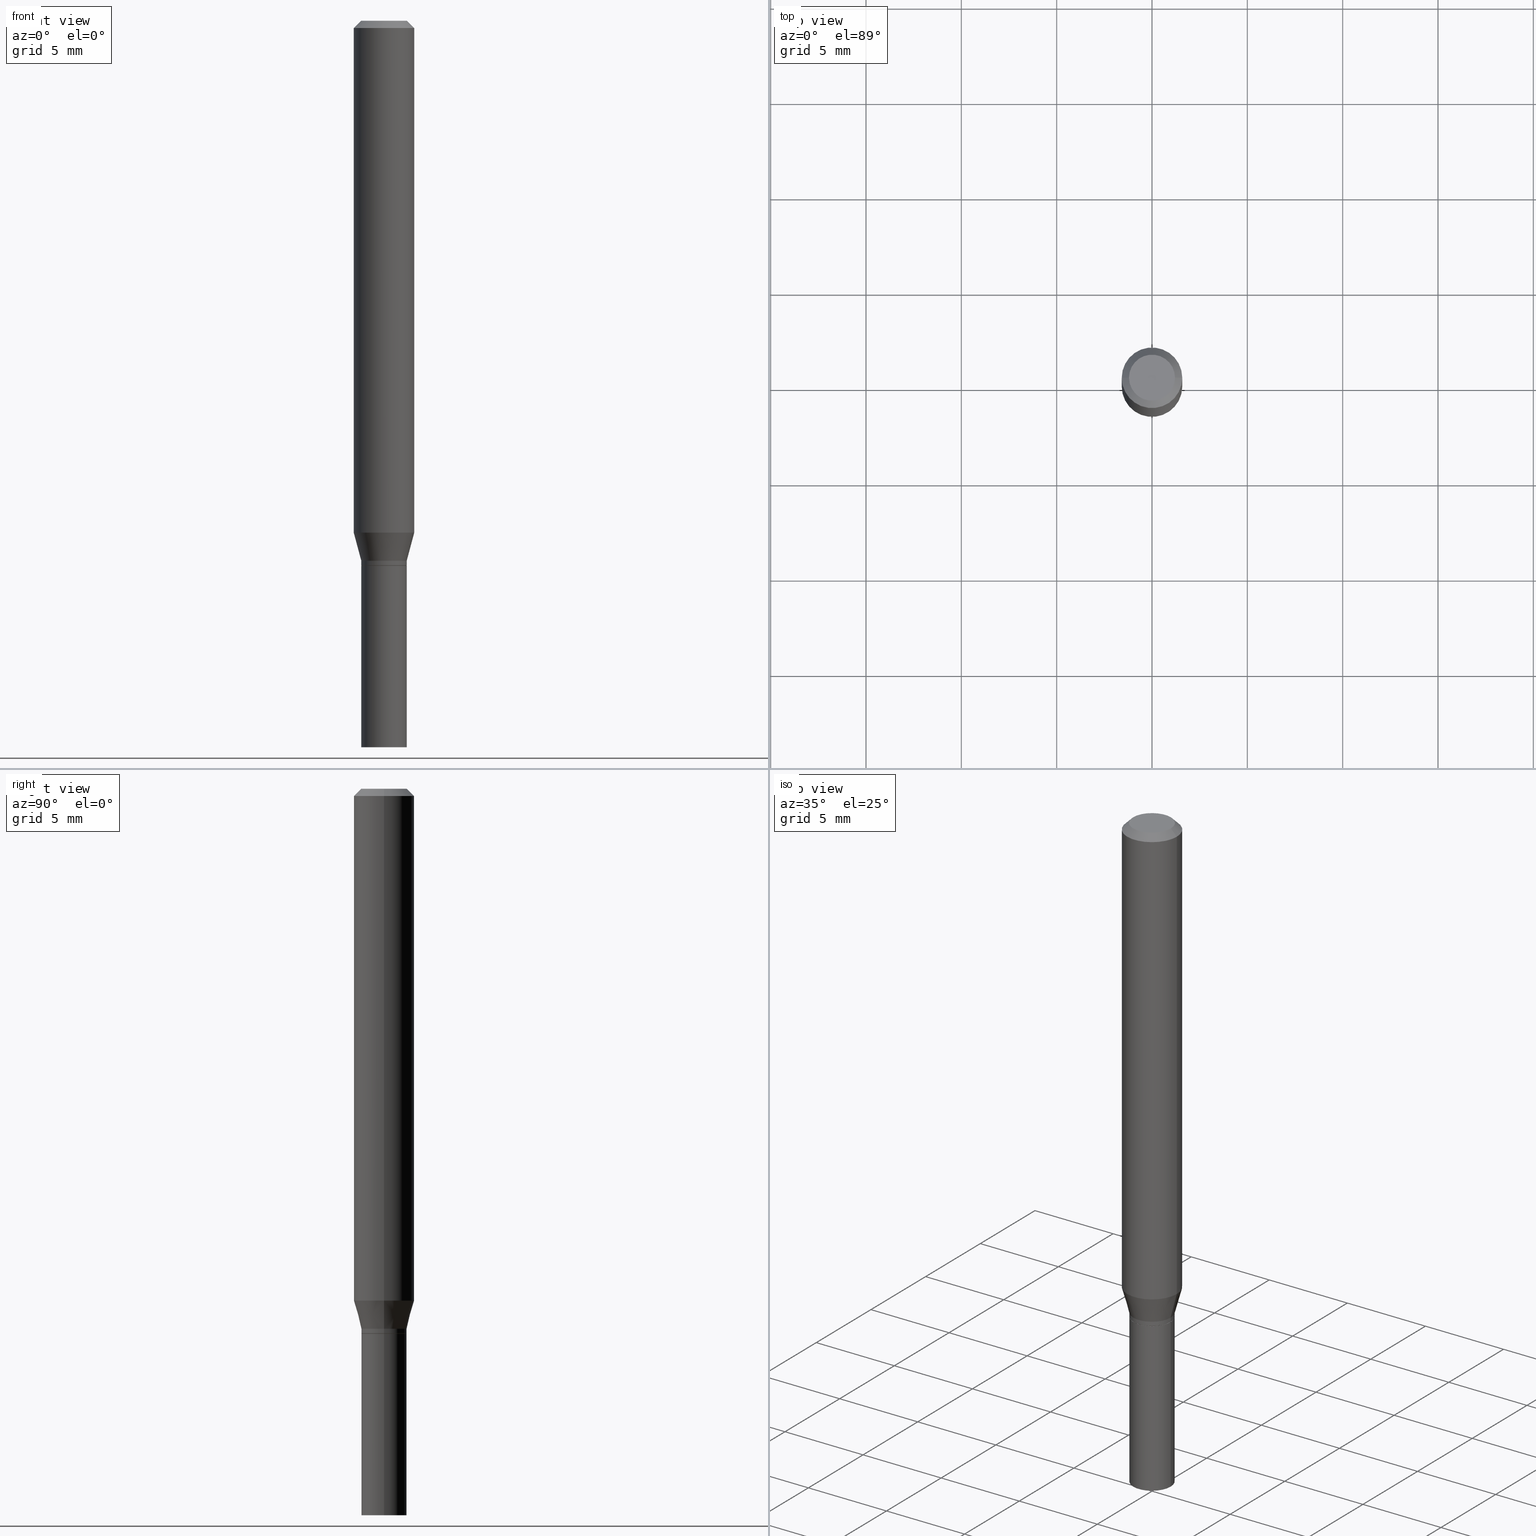
[diagram: canonical four-view strip — front | top / right | iso, engineering-drawing reading convention]
A machine part, canonical four-view strip (front | top / right | iso — engineering-drawing reading convention). The complete STEP part file that produces these views, byte-faithful:
ISO-10303-21;
HEADER;
FILE_DESCRIPTION (( 'STEP AP203' ),
    '1' );
FILE_NAME ('35275.STEP',
    '2024-03-13T16:38:30',
    ( '' ),
    ( '' ),
    'SwSTEP 2.0',
    'SolidWorks 2023',
    '' );
FILE_SCHEMA (( 'CONFIG_CONTROL_DESIGN' ));
ENDSEC;

DATA;
#1 = EDGE_CURVE ( 'NONE', #136, #119, #212, .T. ) ;
#2 = DIRECTION ( 'NONE',  ( 1.000000000000000000, 0.000000000000000000, 0.000000000000000000 ) ) ;
#3 = PRODUCT_RELATED_PRODUCT_CATEGORY ( 'detail', '', ( #90 ) ) ;
#4 = VECTOR ( 'NONE', #116, 39.37007874015748143 ) ;
#5 = APPROVAL_PERSON_ORGANIZATION ( #46, #442, #328 ) ;
#6 = ADVANCED_BREP_SHAPE_REPRESENTATION ( '35275', ( #162, #155, #414 ), #150 ) ;
#7 = COORDINATED_UNIVERSAL_TIME_OFFSET ( 5, 0, .BEHIND. ) ;
#8 = CYLINDRICAL_SURFACE ( 'NONE', #61, 0.06250000000000000000 ) ;
#9 = DATE_AND_TIME ( #71, #70 ) ;
#10 = VERTEX_POINT ( 'NONE', #103 ) ;
#11 = ORIENTED_EDGE ( 'NONE', *, *, #202, .F. ) ;
#12 = CARTESIAN_POINT ( 'NONE',  ( 3.668203209277705088E-31, -5.237222008264718399E-17, -0.01499999999999999944 ) ) ;
#13 = APPROVAL_ROLE ( '' ) ;
#14 = EDGE_LOOP ( 'NONE', ( #169, #352, #58, #139 ) ) ;
#15 = CIRCLE ( 'NONE', #327, 0.04749999999999999362 ) ;
#16 = DIRECTION ( 'NONE',  ( 1.000000000000000000, -6.982962677686267499E-15, 4.852736867747366768E-29 ) ) ;
#17 = CC_DESIGN_APPROVAL ( #316, ( #326 ) ) ;
#18 = ADVANCED_FACE ( 'NONE', ( #244 ), #445, .T. ) ;
#19 = LINE ( 'NONE', #298, #4 ) ;
#20 = APPROVAL_DATE_TIME ( #439, #65 ) ;
#21 = DIRECTION ( 'NONE',  ( -2.445468806185136597E-29, 3.491481338843145583E-15, 1.000000000000000000 ) ) ;
#22 = FACE_OUTER_BOUND ( 'NONE', #161, .T. ) ;
#23 = ADVANCED_FACE ( 'NONE', ( #182 ), #283, .T. ) ;
#24 = CIRCLE ( 'NONE', #319, 0.04639999999999999680 ) ;
#25 = DIRECTION ( 'NONE',  ( 1.000000000000000000, -6.982962677686266711E-15, 0.000000000000000000 ) ) ;
#26 = UNCERTAINTY_MEASURE_WITH_UNIT (LENGTH_MEASURE( 1.000000000000000082E-05 ), #141, 'distance_accuracy_value', 'NONE');
#27 = CARTESIAN_POINT ( 'NONE',  ( 2.751152406958279232E-29, -3.927916506198539224E-15, -1.125000000000000222 ) ) ;
#28 = DIRECTION ( 'NONE',  ( 2.438088387897960049E-29, -3.491481338843145188E-15, -1.000000000000000000 ) ) ;
#29 = DIRECTION ( 'NONE',  ( 1.000000000000000000, -6.982962677686265922E-15, 4.876176775795935232E-29 ) ) ;
#30 = VECTOR ( 'NONE', #278, 39.37007874015748143 ) ;
#31 = CARTESIAN_POINT ( 'NONE',  ( 0.04690000000000019154, -4.220502642393595055E-15, -1.115000000000000213 ) ) ;
#32 = LINE ( 'NONE', #67, #30 ) ;
#33 = CARTESIAN_POINT ( 'NONE',  ( 0.04689999999999999725, -3.275009495834859024E-16, 2.286926907848294038E-30 ) ) ;
#34 = DIRECTION ( 'NONE',  ( 1.000000000000000000, -6.982962677686265922E-15, 4.876176775795935793E-29 ) ) ;
#35 = VERTEX_POINT ( 'NONE', #253 ) ;
#36 = ORIENTED_EDGE ( 'NONE', *, *, #397, .F. ) ;
#37 = CIRCLE ( 'NONE', #51, 0.04639999999999999680 ) ;
#38 = AXIS2_PLACEMENT_3D ( 'NONE', #104, #72, #398 ) ;
#39 = FACE_OUTER_BOUND ( 'NONE', #380, .T. ) ;
#40 = DIRECTION ( 'NONE',  ( 0.7071067811865656694, -2.468850131082446387E-15, 0.7071067811865294761 ) ) ;
#41 = VERTEX_POINT ( 'NONE', #31 ) ;
#42 = MECHANICAL_CONTEXT ( 'NONE', #166, 'mechanical' ) ;
#43 = PERSON_AND_ORGANIZATION ( #421, #205 ) ;
#44 = AXIS2_PLACEMENT_3D ( 'NONE', #181, #252, #263 ) ;
#45 = CYLINDRICAL_SURFACE ( 'NONE', #272, 0.06250000000000000000 ) ;
#46 = PERSON_AND_ORGANIZATION ( #421, #205 ) ;
#47 = ORIENTED_EDGE ( 'NONE', *, *, #222, .F. ) ;
#48 = CARTESIAN_POINT ( 'NONE',  ( 0.000000000000000000, 0.000000000000000000, 0.000000000000000000 ) ) ;
#49 = DIRECTION ( 'NONE',  ( 0.2588190451025217942, 1.565188264969618812E-15, 0.9659258262890679791 ) ) ;
#50 = CC_DESIGN_PERSON_AND_ORGANIZATION_ASSIGNMENT ( #43, #290, ( #90 ) ) ;
#51 = AXIS2_PLACEMENT_3D ( 'NONE', #464, #286, #115 ) ;
#52 = DIRECTION ( 'NONE',  ( -2.445468806185136877E-29, 3.491481338843145188E-15, 1.000000000000000000 ) ) ;
#53 = LINE ( 'NONE', #302, #309 ) ;
#54 = SHAPE_DEFINITION_REPRESENTATION ( #152, #6 ) ;
#55 = ORIENTED_EDGE ( 'NONE', *, *, #112, .T. ) ;
#56 = VERTEX_POINT ( 'NONE', #454 ) ;
#57 = LINE ( 'NONE', #196, #62 ) ;
#58 = ORIENTED_EDGE ( 'NONE', *, *, #337, .T. ) ;
#59 = EDGE_LOOP ( 'NONE', ( #426, #465 ) ) ;
#60 = CARTESIAN_POINT ( 'NONE',  ( 0.06250000000000000000, -4.364351673553916694E-16, 3.047610484872459871E-30 ) ) ;
#61 = AXIS2_PLACEMENT_3D ( 'NONE', #291, #433, #189 ) ;
#62 = VECTOR ( 'NONE', #344, 39.37007874015748854 ) ;
#63 = DIRECTION ( 'NONE',  ( -2.438088387897960049E-29, 3.491481338843145188E-15, 1.000000000000000000 ) ) ;
#64 = ADVANCED_FACE ( 'NONE', ( #371 ), #401, .T. ) ;
#65 = APPROVAL ( #339, 'UNSPECIFIED' ) ;
#66 = CARTESIAN_POINT ( 'NONE',  ( -0.04749999999999999362, 3.578768372314206562E-16, -2.412092357106787927E-16 ) ) ;
#67 = CARTESIAN_POINT ( 'NONE',  ( -0.04689999999999999725, 3.332445430714869676E-16, -2.306980557329550952E-30 ) ) ;
#68 = VERTEX_POINT ( 'NONE', #248 ) ;
#69 = AXIS2_PLACEMENT_3D ( 'NONE', #275, #21, #228 ) ;
#70 = LOCAL_TIME ( 12, 38, 30.00000000000000000, #7 ) ;
#71 = CALENDAR_DATE ( 2024, 13, 3 ) ;
#72 = DIRECTION ( 'NONE',  ( 2.438088387897960049E-29, -3.491481338843145188E-15, -1.000000000000000000 ) ) ;
#73 = VERTEX_POINT ( 'NONE', #430 ) ;
#74 = ORIENTED_EDGE ( 'NONE', *, *, #204, .F. ) ;
#75 = CALENDAR_DATE ( 2024, 13, 3 ) ;
#76 = ORIENTED_EDGE ( 'NONE', *, *, #208, .F. ) ;
#77 = DIRECTION ( 'NONE',  ( -2.445468806185136597E-29, 3.491481338843145583E-15, 1.000000000000000000 ) ) ;
#78 = DIRECTION ( 'NONE',  ( 1.000000000000000000, -6.982962677686266711E-15, 0.000000000000000000 ) ) ;
#79 = ADVANCED_FACE ( 'NONE', ( #183 ), #8, .T. ) ;
#80 = DIRECTION ( 'NONE',  ( 1.000000000000000000, -6.982962677686269866E-15, 0.000000000000000000 ) ) ;
#81 = APPLICATION_PROTOCOL_DEFINITION ( 'international standard', 'config_control_design', 1994, #166 ) ;
#82 = ORIENTED_EDGE ( 'NONE', *, *, #208, .T. ) ;
#83 = CARTESIAN_POINT ( 'NONE',  ( 2.751152406958279232E-29, -3.927916506198539224E-15, -1.125000000000000222 ) ) ;
#84 = DIRECTION ( 'NONE',  ( -2.445468806185136877E-29, 3.491481338843145188E-15, 1.000000000000000000 ) ) ;
#85 = LINE ( 'NONE', #187, #149 ) ;
#86 = PERSON_AND_ORGANIZATION_ROLE ( 'classification_officer' ) ;
#87 = COORDINATED_UNIVERSAL_TIME_OFFSET ( 5, 0, .BEHIND. ) ;
#88 = CIRCLE ( 'NONE', #437, 0.06249999999999999306 ) ;
#89 = EDGE_CURVE ( 'NONE', #68, #41, #19, .T. ) ;
#90 = PRODUCT ( '35275', '35275', '', ( #42 ) ) ;
#91 = DIRECTION ( 'NONE',  ( 1.000000000000000000, -6.982962677686269866E-15, 0.000000000000000000 ) ) ;
#92 = EDGE_LOOP ( 'NONE', ( #436, #389, #111, #394 ) ) ;
#93 = DIRECTION ( 'NONE',  ( 1.000000000000000000, -6.982962677686266711E-15, 0.000000000000000000 ) ) ;
#94 = FACE_OUTER_BOUND ( 'NONE', #210, .T. ) ;
#95 = DIRECTION ( 'NONE',  ( -2.445468806185136597E-29, 3.491481338843145583E-15, 1.000000000000000000 ) ) ;
#96 = DIRECTION ( 'NONE',  ( -0.2588190451025217942, 5.211531920934552619E-15, 0.9659258262890679791 ) ) ;
#97 = ADVANCED_FACE ( 'NONE', ( #215 ), #365, .T. ) ;
#98 = CC_DESIGN_PERSON_AND_ORGANIZATION_ASSIGNMENT ( #251, #363, ( #326 ) ) ;
#99 = CONICAL_SURFACE ( 'NONE', #185, 0.04639999999999999680, 0.7853981633974739252 ) ;
#100 = APPROVAL_PERSON_ORGANIZATION ( #216, #316, #366 ) ;
#101 = CARTESIAN_POINT ( 'NONE',  ( 2.584322543101508946E-29, -3.689727675106347649E-15, -1.056780007401926680 ) ) ;
#102 = DIRECTION ( 'NONE',  ( 1.000000000000000000, -6.982962677686269866E-15, 0.000000000000000000 ) ) ;
#103 = CARTESIAN_POINT ( 'NONE',  ( 0.04749999999999999362, -4.035134999187582567E-16, -2.412092357106738130E-16 ) ) ;
#104 = CARTESIAN_POINT ( 'NONE',  ( 3.316907271900976096E-16, 0.04749999999999999362, -2.864499814503876342E-16 ) ) ;
#105 = DIRECTION ( 'NONE',  ( -2.438088387897960049E-29, 3.491481338843145188E-15, 1.000000000000000000 ) ) ;
#106 = DIRECTION ( 'NONE',  ( 1.000000000000000000, -6.982962677686266711E-15, 0.000000000000000000 ) ) ;
#107 = DIRECTION ( 'NONE',  ( 2.445468806185136597E-29, -3.491481338843145583E-15, -1.000000000000000000 ) ) ;
#108 = AXIS2_PLACEMENT_3D ( 'NONE', #384, #378, #381 ) ;
#109 = VECTOR ( 'NONE', #96, 39.37007874015748143 ) ;
#110 = CARTESIAN_POINT ( 'NONE',  ( 0.000000000000000000, 0.000000000000000000, 0.000000000000000000 ) ) ;
#111 = ORIENTED_EDGE ( 'NONE', *, *, #174, .T. ) ;
#112 = EDGE_CURVE ( 'NONE', #35, #425, #88, .T. ) ;
#113 = CALENDAR_DATE ( 2024, 13, 3 ) ;
#114 = EDGE_CURVE ( 'NONE', #265, #68, #53, .T. ) ;
#115 = DIRECTION ( 'NONE',  ( 1.000000000000000000, -6.982962677686266711E-15, 0.000000000000000000 ) ) ;
#116 = DIRECTION ( 'NONE',  ( -2.445468806185136877E-29, 3.491481338843145188E-15, 1.000000000000000000 ) ) ;
#117 = AXIS2_PLACEMENT_3D ( 'NONE', #422, #383, #91 ) ;
#118 = PERSON_AND_ORGANIZATION ( #421, #205 ) ;
#119 = VERTEX_POINT ( 'NONE', #364 ) ;
#120 = COORDINATED_UNIVERSAL_TIME_OFFSET ( 5, 0, .BEHIND. ) ;
#121 = CIRCLE ( 'NONE', #44, 0.04689999999999999725 ) ;
#122 = CIRCLE ( 'NONE', #349, 0.04690000000000019154 ) ;
#123 = EDGE_CURVE ( 'NONE', #265, #73, #24, .T. ) ;
#124 = CC_DESIGN_DATE_AND_TIME_ASSIGNMENT ( #209, #388, ( #326 ) ) ;
#125 = CYLINDRICAL_SURFACE ( 'NONE', #407, 0.04690000000000012215 ) ;
#126 = ORIENTED_EDGE ( 'NONE', *, *, #281, .F. ) ;
#127 = AXIS2_PLACEMENT_3D ( 'NONE', #405, #255, #80 ) ;
#128 = CC_DESIGN_APPROVAL ( #65, ( #186 ) ) ;
#129 = CYLINDRICAL_SURFACE ( 'NONE', #399, 0.04689999999999999725 ) ;
#130 = EDGE_LOOP ( 'NONE', ( #36, #440, #322, #195 ) ) ;
#131 = CARTESIAN_POINT ( 'NONE',  ( 2.751152406958279232E-29, -3.927916506198539224E-15, -1.125000000000000222 ) ) ;
#132 = CARTESIAN_POINT ( 'NONE',  ( -0.04639999999999999680, -3.598224676805852761E-15, -1.125000000000000222 ) ) ;
#133 = EDGE_LOOP ( 'NONE', ( #355, #11, #404, #463 ) ) ;
#134 = AXIS2_PLACEMENT_3D ( 'NONE', #294, #249, #78 ) ;
#135 = DIRECTION ( 'NONE',  ( -2.445468806185136597E-29, 3.491481338843145583E-15, 1.000000000000000000 ) ) ;
#136 = VERTEX_POINT ( 'NONE', #304 ) ;
#137 = CARTESIAN_POINT ( 'NONE',  ( 3.668203209277705088E-31, -5.237222008264718399E-17, -0.01499999999999999944 ) ) ;
#138 = DIMENSIONAL_EXPONENTS ( 1.000000000000000000, 0.000000000000000000, 0.000000000000000000, 0.000000000000000000, 0.000000000000000000, 0.000000000000000000, 0.000000000000000000 ) ;
#139 = ORIENTED_EDGE ( 'NONE', *, *, #188, .F. ) ;
#140 = ORIENTED_EDGE ( 'NONE', *, *, #114, .F. ) ;
#141 =( CONVERSION_BASED_UNIT ( 'INCH', #179 ) LENGTH_UNIT ( ) NAMED_UNIT ( #138 ) );
#142 = ORIENTED_EDGE ( 'NONE', *, *, #89, .T. ) ;
#143 = DIRECTION ( 'NONE',  ( -1.000000000000000000, 6.982962677686266711E-15, 0.000000000000000000 ) ) ;
#144 = ADVANCED_FACE ( 'NONE', ( #447 ), #410, .F. ) ;
#145 = ORIENTED_EDGE ( 'NONE', *, *, #307, .T. ) ;
#146 = CC_DESIGN_PERSON_AND_ORGANIZATION_ASSIGNMENT ( #264, #267, ( #391 ) ) ;
#147 = CARTESIAN_POINT ( 'NONE',  ( 0.000000000000000000, 0.000000000000000000, 0.000000000000000000 ) ) ;
#148 = APPROVAL_DATE_TIME ( #9, #442 ) ;
#149 = VECTOR ( 'NONE', #52, 39.37007874015748143 ) ;
#150 =( GEOMETRIC_REPRESENTATION_CONTEXT ( 3 ) GLOBAL_UNCERTAINTY_ASSIGNED_CONTEXT ( ( #26 ) ) GLOBAL_UNIT_ASSIGNED_CONTEXT ( ( #141, #287, #214 ) ) REPRESENTATION_CONTEXT ( 'NONE', 'WORKASPACE' ) );
#151 = DIRECTION ( 'NONE',  ( 1.000000000000000000, -6.982962677686266711E-15, 4.876176775795936353E-29 ) ) ;
#152 = PRODUCT_DEFINITION_SHAPE ( 'NONE', 'NONE',  #326 ) ;
#153 = CC_DESIGN_DATE_AND_TIME_ASSIGNMENT ( #305, #157, ( #186 ) ) ;
#154 = DIRECTION ( 'NONE',  ( -2.445468806185136597E-29, 3.491481338843145583E-15, 1.000000000000000000 ) ) ;
#155 = MANIFOLD_SOLID_BREP ( 'Body-Move/Copy2[2]', #444 ) ;
#156 = CALENDAR_DATE ( 2024, 13, 3 ) ;
#157 = DATE_TIME_ROLE ( 'classification_date' ) ;
#158 = EDGE_CURVE ( 'NONE', #119, #136, #419, .T. ) ;
#159 = CARTESIAN_POINT ( 'NONE',  ( 3.668203209277705088E-31, -5.237222008264718399E-17, -0.01499999999999999944 ) ) ;
#160 = CARTESIAN_POINT ( 'NONE',  ( 0.06250000000000000000, -4.888073874380388472E-16, -0.01499999999999999944 ) ) ;
#161 = EDGE_LOOP ( 'NONE', ( #318, #55, #145, #47 ) ) ;
#162 = MANIFOLD_SOLID_BREP ( 'Body-Move/Copy2[1]', #308 ) ;
#163 = AXIS2_PLACEMENT_3D ( 'NONE', #457, #203, #227 ) ;
#164 = CYLINDRICAL_SURFACE ( 'NONE', #320, 0.04690000000000012215 ) ;
#165 = CARTESIAN_POINT ( 'NONE',  ( 0.04639999999999999680, -4.251925974443182119E-15, -1.125000000000000222 ) ) ;
#166 = APPLICATION_CONTEXT ( 'configuration controlled 3d designs of mechanical parts and assemblies' ) ;
#167 = EDGE_LOOP ( 'NONE', ( #443, #288 ) ) ;
#168 = CARTESIAN_POINT ( 'NONE',  ( 0.000000000000000000, 0.000000000000000000, 0.000000000000000000 ) ) ;
#169 = ORIENTED_EDGE ( 'NONE', *, *, #333, .F. ) ;
#170 = AXIS2_PLACEMENT_3D ( 'NONE', #347, #276, #102 ) ;
#171 = AXIS2_PLACEMENT_3D ( 'NONE', #131, #63, #34 ) ;
#172 = FACE_OUTER_BOUND ( 'NONE', #376, .T. ) ;
#173 = ORIENTED_EDGE ( 'NONE', *, *, #204, .T. ) ;
#174 = EDGE_CURVE ( 'NONE', #423, #56, #459, .T. ) ;
#175 = PLANE ( 'NONE',  #38 ) ;
#176 = ORIENTED_EDGE ( 'NONE', *, *, #379, .F. ) ;
#177 = ORIENTED_EDGE ( 'NONE', *, *, #188, .T. ) ;
#178 = AXIS2_PLACEMENT_3D ( 'NONE', #297, #241, #321 ) ;
#179 = LENGTH_MEASURE_WITH_UNIT ( LENGTH_MEASURE( 0.02539999999999999897 ), #393 );
#180 = EDGE_CURVE ( 'NONE', #73, #265, #37, .T. ) ;
#181 = CARTESIAN_POINT ( 'NONE',  ( 2.751152406958279232E-29, -3.927916506198539224E-15, -1.125000000000000222 ) ) ;
#182 = FACE_OUTER_BOUND ( 'NONE', #133, .T. ) ;
#183 = FACE_OUTER_BOUND ( 'NONE', #341, .T. ) ;
#184 = CARTESIAN_POINT ( 'NONE',  ( -0.04689999999999999725, -4.249324714160141733E-15, -1.125000000000000222 ) ) ;
#185 = AXIS2_PLACEMENT_3D ( 'NONE', #27, #343, #299 ) ;
#186 = SECURITY_CLASSIFICATION ( '', '', #221 ) ;
#187 = CARTESIAN_POINT ( 'NONE',  ( -0.04690000000000012215, 3.332445430714878551E-16, -2.306980557329556558E-30 ) ) ;
#188 = EDGE_CURVE ( 'NONE', #438, #348, #340, .T. ) ;
#189 = DIRECTION ( 'NONE',  ( 1.000000000000000000, -6.982962677686266711E-15, 4.876176775795935793E-29 ) ) ;
#190 = APPLICATION_CONTEXT ( 'configuration controlled 3d designs of mechanical parts and assemblies' ) ;
#191 = EDGE_CURVE ( 'NONE', #277, #56, #361, .T. ) ;
#192 = CIRCLE ( 'NONE', #108, 0.04690000000000005970 ) ;
#193 = ORIENTED_EDGE ( 'NONE', *, *, #397, .T. ) ;
#194 = CIRCLE ( 'NONE', #390, 0.06250000000000000000 ) ;
#195 = ORIENTED_EDGE ( 'NONE', *, *, #112, .F. ) ;
#196 = CARTESIAN_POINT ( 'NONE',  ( 0.06250000000000000000, -4.811533449433679005E-16, -0.01499999999999999944 ) ) ;
#197 = DIRECTION ( 'NONE',  ( 1.000000000000000000, -6.982962677686268288E-15, 0.000000000000000000 ) ) ;
#198 = ORIENTED_EDGE ( 'NONE', *, *, #300, .F. ) ;
#199 = AXIS2_PLACEMENT_3D ( 'NONE', #159, #107, #143 ) ;
#200 = DIRECTION ( 'NONE',  ( -0.7071067811865656694, 7.493145998870420424E-15, 0.7071067811865294761 ) ) ;
#201 = PLANE ( 'NONE',  #171 ) ;
#202 = EDGE_CURVE ( 'NONE', #277, #10, #15, .T. ) ;
#203 = DIRECTION ( 'NONE',  ( -2.445468806185136597E-29, 3.491481338843145583E-15, 1.000000000000000000 ) ) ;
#204 = EDGE_CURVE ( 'NONE', #348, #438, #121, .T. ) ;
#205 = ORGANIZATION ( 'UNSPECIFIED', 'UNSPECIFIED', '' ) ;
#206 = PERSON_AND_ORGANIZATION_ROLE ( 'creator' ) ;
#207 = EDGE_LOOP ( 'NONE', ( #269, #301, #198, #140 ) ) ;
#208 = EDGE_CURVE ( 'NONE', #41, #334, #406, .T. ) ;
#209 = DATE_AND_TIME ( #75, #274 ) ;
#210 = EDGE_LOOP ( 'NONE', ( #258, #403, #76, #325 ) ) ;
#211 = LINE ( 'NONE', #279, #362 ) ;
#212 = CIRCLE ( 'NONE', #178, 0.04689999999999999725 ) ;
#213 = AXIS2_PLACEMENT_3D ( 'NONE', #101, #312, #354 ) ;
#214 =( NAMED_UNIT ( * ) SI_UNIT ( $, .STERADIAN. ) SOLID_ANGLE_UNIT ( ) );
#215 = FACE_OUTER_BOUND ( 'NONE', #14, .T. ) ;
#216 = PERSON_AND_ORGANIZATION ( #421, #205 ) ;
#217 = VERTEX_POINT ( 'NONE', #261 ) ;
#218 = ADVANCED_FACE ( 'NONE', ( #367 ), #230, .F. ) ;
#219 = CIRCLE ( 'NONE', #163, 0.04749999999999999362 ) ;
#220 = CARTESIAN_POINT ( 'NONE',  ( 2.584322543101508946E-29, -3.689727675106347649E-15, -1.056780007401926680 ) ) ;
#221 = SECURITY_CLASSIFICATION_LEVEL ( 'unclassified' ) ;
#222 = EDGE_CURVE ( 'NONE', #56, #423, #194, .T. ) ;
#223 = ADVANCED_FACE ( 'NONE', ( #466 ), #99, .T. ) ;
#224 = ORIENTED_EDGE ( 'NONE', *, *, #379, .T. ) ;
#225 = PERSON_AND_ORGANIZATION ( #421, #205 ) ;
#226 = AXIS2_PLACEMENT_3D ( 'NONE', #12, #330, #432 ) ;
#227 = DIRECTION ( 'NONE',  ( 1.000000000000000000, -6.982962677686267499E-15, 4.852736867747366768E-29 ) ) ;
#228 = DIRECTION ( 'NONE',  ( 1.000000000000000000, -6.982962677686256455E-15, 0.000000000000000000 ) ) ;
#229 = LINE ( 'NONE', #132, #296 ) ;
#230 = PLANE ( 'NONE',  #245 ) ;
#231 = CC_DESIGN_PERSON_AND_ORGANIZATION_ASSIGNMENT ( #118, #206, ( #391 ) ) ;
#232 = DIRECTION ( 'NONE',  ( -2.445468806185136597E-29, 3.491481338843145583E-15, 1.000000000000000000 ) ) ;
#233 = FACE_OUTER_BOUND ( 'NONE', #458, .T. ) ;
#234 = AXIS2_PLACEMENT_3D ( 'NONE', #392, #232, #235 ) ;
#235 = DIRECTION ( 'NONE',  ( 1.000000000000000000, -6.982962677686266711E-15, 0.000000000000000000 ) ) ;
#236 = LOCAL_TIME ( 12, 38, 30.00000000000000000, #120 ) ;
#237 = LINE ( 'NONE', #33, #289 ) ;
#238 = ADVANCED_FACE ( 'NONE', ( #22 ), #45, .T. ) ;
#239 = DIRECTION ( 'NONE',  ( -2.445468806185136877E-29, 3.491481338843145188E-15, 1.000000000000000000 ) ) ;
#240 = ORIENTED_EDGE ( 'NONE', *, *, #461, .F. ) ;
#241 = DIRECTION ( 'NONE',  ( -2.445468806185136597E-29, 3.491481338843145583E-15, 1.000000000000000000 ) ) ;
#242 = COORDINATED_UNIVERSAL_TIME_OFFSET ( 5, 0, .BEHIND. ) ;
#243 = DIRECTION ( 'NONE',  ( 1.000000000000000000, -6.982962677686265922E-15, 4.876176775795935793E-29 ) ) ;
#244 = FACE_OUTER_BOUND ( 'NONE', #207, .T. ) ;
#245 = AXIS2_PLACEMENT_3D ( 'NONE', #342, #105, #243 ) ;
#246 = EDGE_CURVE ( 'NONE', #217, #334, #85, .T. ) ;
#247 = DIRECTION ( 'NONE',  ( -2.445468806185136597E-29, 3.491481338843145583E-15, 1.000000000000000000 ) ) ;
#248 = CARTESIAN_POINT ( 'NONE',  ( 0.04690000000000005970, -4.253671715112603623E-15, -1.124500000000000055 ) ) ;
#249 = DIRECTION ( 'NONE',  ( -2.445468806185136597E-29, 3.491481338843145583E-15, 1.000000000000000000 ) ) ;
#250 = DIRECTION ( 'NONE',  ( 1.000000000000000000, -6.982962677686266711E-15, 4.876176775795935793E-29 ) ) ;
#251 = PERSON_AND_ORGANIZATION ( #421, #205 ) ;
#252 = DIRECTION ( 'NONE',  ( -2.445468806185136597E-29, 3.491481338843145583E-15, 1.000000000000000000 ) ) ;
#253 = CARTESIAN_POINT ( 'NONE',  ( -0.06249999999999999306, -3.245638465256285822E-15, -1.056780007401926680 ) ) ;
#254 = CONICAL_SURFACE ( 'NONE', #117, 0.04690000000000019154, 0.2617993877991505181 ) ;
#255 = DIRECTION ( 'NONE',  ( -2.445468806185136597E-29, 3.491481338843145583E-15, 1.000000000000000000 ) ) ;
#256 = LINE ( 'NONE', #358, #357 ) ;
#257 = ORIENTED_EDGE ( 'NONE', *, *, #123, .F. ) ;
#258 = ORIENTED_EDGE ( 'NONE', *, *, #300, .T. ) ;
#259 = DIRECTION ( 'NONE',  ( -0.7071067811865531239, 2.468850131082316225E-15, -0.7071067811865416886 ) ) ;
#260 = EDGE_CURVE ( 'NONE', #35, #56, #211, .T. ) ;
#261 = CARTESIAN_POINT ( 'NONE',  ( -0.04690000000000005970, -3.592926222457630359E-15, -1.124500000000000055 ) ) ;
#262 = ORIENTED_EDGE ( 'NONE', *, *, #307, .F. ) ;
#263 = DIRECTION ( 'NONE',  ( 1.000000000000000000, -6.982962677686266711E-15, 0.000000000000000000 ) ) ;
#264 = PERSON_AND_ORGANIZATION ( #421, #205 ) ;
#265 = VERTEX_POINT ( 'NONE', #165 ) ;
#266 = VECTOR ( 'NONE', #259, 39.37007874015748854 ) ;
#267 = PERSON_AND_ORGANIZATION_ROLE ( 'design_supplier' ) ;
#268 = CIRCLE ( 'NONE', #213, 0.06249999999999999306 ) ;
#269 = ORIENTED_EDGE ( 'NONE', *, *, #123, .T. ) ;
#270 = CC_DESIGN_PERSON_AND_ORGANIZATION_ASSIGNMENT ( #411, #86, ( #186 ) ) ;
#271 = ORIENTED_EDGE ( 'NONE', *, *, #180, .F. ) ;
#272 = AXIS2_PLACEMENT_3D ( 'NONE', #147, #431, #250 ) ;
#273 = DIRECTION ( 'NONE',  ( 1.000000000000000000, -6.982962677686265922E-15, 4.876176775795935232E-29 ) ) ;
#274 = LOCAL_TIME ( 12, 38, 30.00000000000000000, #242 ) ;
#275 = CARTESIAN_POINT ( 'NONE',  ( 3.668203209277704895E-29, -5.237222008264718177E-15, -1.500000000000000222 ) ) ;
#276 = DIRECTION ( 'NONE',  ( -2.445468806185136597E-29, 3.491481338843145583E-15, 1.000000000000000000 ) ) ;
#277 = VERTEX_POINT ( 'NONE', #66 ) ;
#278 = DIRECTION ( 'NONE',  ( -2.445468806185136877E-29, 3.491481338843145188E-15, 1.000000000000000000 ) ) ;
#279 = CARTESIAN_POINT ( 'NONE',  ( -0.06250000000000000000, 4.440892098500626162E-16, -3.074334431409316114E-30 ) ) ;
#280 = FACE_OUTER_BOUND ( 'NONE', #130, .T. ) ;
#281 = EDGE_CURVE ( 'NONE', #217, #68, #413, .T. ) ;
#282 = ORIENTED_EDGE ( 'NONE', *, *, #372, .F. ) ;
#283 = CONICAL_SURFACE ( 'NONE', #226, 0.06250000000000000000, 0.7853981633974563836 ) ;
#284 = CC_DESIGN_APPROVAL ( #442, ( #391 ) ) ;
#285 = FACE_OUTER_BOUND ( 'NONE', #315, .T. ) ;
#286 = DIRECTION ( 'NONE',  ( -2.445468806185136597E-29, 3.491481338843145583E-15, 1.000000000000000000 ) ) ;
#287 =( NAMED_UNIT ( * ) PLANE_ANGLE_UNIT ( ) SI_UNIT ( $, .RADIAN. ) );
#288 = ORIENTED_EDGE ( 'NONE', *, *, #331, .T. ) ;
#289 = VECTOR ( 'NONE', #420, 39.37007874015748143 ) ;
#290 = PERSON_AND_ORGANIZATION_ROLE ( 'design_owner' ) ;
#291 = CARTESIAN_POINT ( 'NONE',  ( 0.000000000000000000, 0.000000000000000000, 0.000000000000000000 ) ) ;
#292 = DIRECTION ( 'NONE',  ( 1.000000000000000000, -6.982962677686269866E-15, 0.000000000000000000 ) ) ;
#293 = ADVANCED_FACE ( 'NONE', ( #285 ), #129, .T. ) ;
#294 = CARTESIAN_POINT ( 'NONE',  ( 2.751152406958279232E-29, -3.927916506198539224E-15, -1.125000000000000222 ) ) ;
#295 = ADVANCED_FACE ( 'NONE', ( #172 ), #254, .T. ) ;
#296 = VECTOR ( 'NONE', #200, 39.37007874015748143 ) ;
#297 = CARTESIAN_POINT ( 'NONE',  ( 3.668203209277704895E-29, -5.237222008264718177E-15, -1.500000000000000222 ) ) ;
#298 = CARTESIAN_POINT ( 'NONE',  ( 0.04690000000000012215, -3.275009495834867406E-16, 2.286926907848299643E-30 ) ) ;
#299 = DIRECTION ( 'NONE',  ( 1.000000000000000000, -6.982962677686266711E-15, 0.000000000000000000 ) ) ;
#300 = EDGE_CURVE ( 'NONE', #68, #217, #192, .T. ) ;
#301 = ORIENTED_EDGE ( 'NONE', *, *, #372, .T. ) ;
#302 = CARTESIAN_POINT ( 'NONE',  ( 0.04639999999999999680, -4.251925974443182119E-15, -1.125000000000000222 ) ) ;
#303 = AXIS2_PLACEMENT_3D ( 'NONE', #374, #28, #338 ) ;
#304 = CARTESIAN_POINT ( 'NONE',  ( -0.04689999999999999725, -4.249324714160141733E-15, -1.500000000000000222 ) ) ;
#305 = DATE_AND_TIME ( #156, #336 ) ;
#306 = DESIGN_CONTEXT ( 'detailed design', #190, 'design' ) ;
#307 = EDGE_CURVE ( 'NONE', #425, #423, #314, .T. ) ;
#308 = CLOSED_SHELL ( 'NONE', ( #293, #218, #97, #144 ) ) ;
#309 = VECTOR ( 'NONE', #40, 39.37007874015748143 ) ;
#310 = DIRECTION ( 'NONE',  ( 1.000000000000000000, -6.982962677686266711E-15, 4.876176775795936353E-29 ) ) ;
#311 = ORIENTED_EDGE ( 'NONE', *, *, #333, .T. ) ;
#312 = DIRECTION ( 'NONE',  ( -2.445468806185136597E-29, 3.491481338843145583E-15, 1.000000000000000000 ) ) ;
#313 = ADVANCED_FACE ( 'NONE', ( #280 ), #427, .T. ) ;
#314 = LINE ( 'NONE', #60, #368 ) ;
#315 = EDGE_LOOP ( 'NONE', ( #385, #311, #74, #412 ) ) ;
#316 = APPROVAL ( #429, 'UNSPECIFIED' ) ;
#317 = CARTESIAN_POINT ( 'NONE',  ( 0.000000000000000000, 0.000000000000000000, 0.000000000000000000 ) ) ;
#318 = ORIENTED_EDGE ( 'NONE', *, *, #260, .F. ) ;
#319 = AXIS2_PLACEMENT_3D ( 'NONE', #83, #95, #25 ) ;
#320 = AXIS2_PLACEMENT_3D ( 'NONE', #317, #449, #29 ) ;
#321 = DIRECTION ( 'NONE',  ( 1.000000000000000000, -6.982962677686256455E-15, 0.000000000000000000 ) ) ;
#322 = ORIENTED_EDGE ( 'NONE', *, *, #446, .T. ) ;
#323 = EDGE_LOOP ( 'NONE', ( #282, #402, #329, #126 ) ) ;
#324 = CARTESIAN_POINT ( 'NONE',  ( 2.726697718896427687E-29, -3.893001692810107575E-15, -1.115000000000000213 ) ) ;
#325 = ORIENTED_EDGE ( 'NONE', *, *, #89, .F. ) ;
#326 = PRODUCT_DEFINITION ( 'UNKNOWN', '', #391, #306 ) ;
#327 = AXIS2_PLACEMENT_3D ( 'NONE', #370, #77, #16 ) ;
#328 = APPROVAL_ROLE ( '' ) ;
#329 = ORIENTED_EDGE ( 'NONE', *, *, #114, .T. ) ;
#330 = DIRECTION ( 'NONE',  ( 2.445468806185136597E-29, -3.491481338843145583E-15, -1.000000000000000000 ) ) ;
#331 = EDGE_CURVE ( 'NONE', #10, #277, #219, .T. ) ;
#332 = APPLICATION_PROTOCOL_DEFINITION ( 'international standard', 'config_control_design', 1994, #190 ) ;
#333 = EDGE_CURVE ( 'NONE', #136, #438, #32, .T. ) ;
#334 = VERTEX_POINT ( 'NONE', #416 ) ;
#335 = AXIS2_PLACEMENT_3D ( 'NONE', #48, #441, #151 ) ;
#336 = LOCAL_TIME ( 12, 38, 30.00000000000000000, #87 ) ;
#337 = EDGE_CURVE ( 'NONE', #119, #348, #237, .T. ) ;
#338 = DIRECTION ( 'NONE',  ( -1.000000000000000000, 6.982962677686265922E-15, -4.876176775795935793E-29 ) ) ;
#339 = APPROVAL_STATUS ( 'not_yet_approved' ) ;
#340 = CIRCLE ( 'NONE', #134, 0.04689999999999999725 ) ;
#341 = EDGE_LOOP ( 'NONE', ( #224, #450, #387, #262 ) ) ;
#342 = CARTESIAN_POINT ( 'NONE',  ( 3.576687321579069994E-29, -5.368277968210015545E-15, -1.500000000000000222 ) ) ;
#343 = DIRECTION ( 'NONE',  ( -2.445468806185136597E-29, 3.491481338843145583E-15, 1.000000000000000000 ) ) ;
#344 = DIRECTION ( 'NONE',  ( 0.7071067811865531239, -7.319954787623273400E-15, -0.7071067811865416886 ) ) ;
#345 = DIRECTION ( 'NONE',  ( -2.445468806185136597E-29, 3.491481338843145583E-15, 1.000000000000000000 ) ) ;
#346 = AXIS2_PLACEMENT_3D ( 'NONE', #377, #345, #93 ) ;
#347 = CARTESIAN_POINT ( 'NONE',  ( 2.726697718896427687E-29, -3.893001692810107575E-15, -1.115000000000000213 ) ) ;
#348 = VERTEX_POINT ( 'NONE', #356 ) ;
#349 = AXIS2_PLACEMENT_3D ( 'NONE', #324, #247, #292 ) ;
#350 = ADVANCED_FACE ( 'NONE', ( #94 ), #164, .T. ) ;
#351 = LINE ( 'NONE', #375, #109 ) ;
#352 = ORIENTED_EDGE ( 'NONE', *, *, #1, .T. ) ;
#353 = DIRECTION ( 'NONE',  ( -2.445468806185136597E-29, 3.491481338843145583E-15, 1.000000000000000000 ) ) ;
#354 = DIRECTION ( 'NONE',  ( 1.000000000000000000, -6.982962677686263555E-15, 0.000000000000000000 ) ) ;
#355 = ORIENTED_EDGE ( 'NONE', *, *, #428, .F. ) ;
#356 = CARTESIAN_POINT ( 'NONE',  ( 0.04689999999999999725, -4.255417455782025127E-15, -1.125000000000000222 ) ) ;
#357 = VECTOR ( 'NONE', #49, 39.37007874015748143 ) ;
#358 = CARTESIAN_POINT ( 'NONE',  ( 0.04690000000000019154, -4.220502642393595055E-15, -1.115000000000000213 ) ) ;
#359 = DIRECTION ( 'NONE',  ( 0.000000000000000000, 0.000000000000000000, 1.000000000000000000 ) ) ;
#360 = APPROVAL_STATUS ( 'not_yet_approved' ) ;
#361 = LINE ( 'NONE', #400, #266 ) ;
#362 = VECTOR ( 'NONE', #84, 39.37007874015748143 ) ;
#363 = PERSON_AND_ORGANIZATION_ROLE ( 'creator' ) ;
#364 = CARTESIAN_POINT ( 'NONE',  ( 0.04689999999999999725, -5.564722957848204079E-15, -1.500000000000000222 ) ) ;
#365 = CYLINDRICAL_SURFACE ( 'NONE', #335, 0.04689999999999999725 ) ;
#366 = APPROVAL_ROLE ( '' ) ;
#367 = FACE_OUTER_BOUND ( 'NONE', #59, .T. ) ;
#368 = VECTOR ( 'NONE', #239, 39.37007874015748143 ) ;
#369 = DIRECTION ( 'NONE',  ( 1.000000000000000000, -6.982962677686263555E-15, 0.000000000000000000 ) ) ;
#370 = CARTESIAN_POINT ( 'NONE',  ( 5.898696616942170633E-45, -8.421775452404442847E-31, -2.412092357106764261E-16 ) ) ;
#371 = FACE_OUTER_BOUND ( 'NONE', #92, .T. ) ;
#372 = EDGE_CURVE ( 'NONE', #73, #217, #229, .T. ) ;
#373 = LOCAL_TIME ( 12, 38, 30.00000000000000000, #462 ) ;
#374 = CARTESIAN_POINT ( 'NONE',  ( 3.275009495835134632E-16, 0.04689999999999607677, -1.125000000000000222 ) ) ;
#375 = CARTESIAN_POINT ( 'NONE',  ( -0.04690000000000019154, -3.559757149738619424E-15, -1.115000000000000213 ) ) ;
#376 = EDGE_LOOP ( 'NONE', ( #82, #193, #176, #435 ) ) ;
#377 = CARTESIAN_POINT ( 'NONE',  ( 3.668203209277705088E-31, -5.237222008264718399E-17, -0.01499999999999999944 ) ) ;
#378 = DIRECTION ( 'NONE',  ( -2.445468806185136597E-29, 3.491481338843145583E-15, 1.000000000000000000 ) ) ;
#379 = EDGE_CURVE ( 'NONE', #425, #35, #268, .T. ) ;
#380 = EDGE_LOOP ( 'NONE', ( #386, #408, #142, #240 ) ) ;
#381 = DIRECTION ( 'NONE',  ( 1.000000000000000000, -6.982962677686268288E-15, 0.000000000000000000 ) ) ;
#382 = APPROVAL_PERSON_ORGANIZATION ( #225, #65, #13 ) ;
#383 = DIRECTION ( 'NONE',  ( -2.445468806185136597E-29, 3.491481338843145583E-15, 1.000000000000000000 ) ) ;
#384 = CARTESIAN_POINT ( 'NONE',  ( 2.749929672555186430E-29, -3.926170765529117721E-15, -1.124500000000000055 ) ) ;
#385 = ORIENTED_EDGE ( 'NONE', *, *, #158, .T. ) ;
#386 = ORIENTED_EDGE ( 'NONE', *, *, #246, .F. ) ;
#387 = ORIENTED_EDGE ( 'NONE', *, *, #174, .F. ) ;
#388 = DATE_TIME_ROLE ( 'creation_date' ) ;
#389 = ORIENTED_EDGE ( 'NONE', *, *, #428, .T. ) ;
#390 = AXIS2_PLACEMENT_3D ( 'NONE', #137, #353, #106 ) ;
#391 = PRODUCT_DEFINITION_FORMATION_WITH_SPECIFIED_SOURCE ( 'ANY', '', #90, .NOT_KNOWN. ) ;
#392 = CARTESIAN_POINT ( 'NONE',  ( 2.751152406958279232E-29, -3.927916506198539224E-15, -1.125000000000000222 ) ) ;
#393 =( LENGTH_UNIT ( ) NAMED_UNIT ( * ) SI_UNIT ( $, .METRE. ) );
#394 = ORIENTED_EDGE ( 'NONE', *, *, #191, .F. ) ;
#395 = DATE_AND_TIME ( #113, #373 ) ;
#396 = ADVANCED_FACE ( 'NONE', ( #39 ), #125, .T. ) ;
#397 = EDGE_CURVE ( 'NONE', #334, #35, #351, .T. ) ;
#398 = DIRECTION ( 'NONE',  ( -1.000000000000000000, 6.982962677686265922E-15, -4.876176775795935793E-29 ) ) ;
#399 = AXIS2_PLACEMENT_3D ( 'NONE', #168, #415, #310 ) ;
#400 = CARTESIAN_POINT ( 'NONE',  ( -0.06250000000000000000, 3.840629472727444916E-16, -0.01499999999999999944 ) ) ;
#401 = CONICAL_SURFACE ( 'NONE', #199, 0.06250000000000000000, 0.7853981633974563836 ) ;
#402 = ORIENTED_EDGE ( 'NONE', *, *, #180, .T. ) ;
#403 = ORIENTED_EDGE ( 'NONE', *, *, #246, .T. ) ;
#404 = ORIENTED_EDGE ( 'NONE', *, *, #191, .T. ) ;
#405 = CARTESIAN_POINT ( 'NONE',  ( 2.726697718896427687E-29, -3.893001692810107575E-15, -1.115000000000000213 ) ) ;
#406 = CIRCLE ( 'NONE', #127, 0.04690000000000019154 ) ;
#407 = AXIS2_PLACEMENT_3D ( 'NONE', #456, #460, #273 ) ;
#408 = ORIENTED_EDGE ( 'NONE', *, *, #281, .T. ) ;
#409 = ADVANCED_FACE ( 'NONE', ( #233 ), #201, .F. ) ;
#410 = PLANE ( 'NONE',  #303 ) ;
#411 = PERSON_AND_ORGANIZATION ( #421, #205 ) ;
#412 = ORIENTED_EDGE ( 'NONE', *, *, #337, .F. ) ;
#413 = CIRCLE ( 'NONE', #451, 0.04690000000000005970 ) ;
#414 = AXIS2_PLACEMENT_3D ( 'NONE', #110, #359, #2 ) ;
#415 = DIRECTION ( 'NONE',  ( -2.445468806185136597E-29, 3.491481338843145583E-15, 1.000000000000000000 ) ) ;
#416 = CARTESIAN_POINT ( 'NONE',  ( -0.04690000000000019154, -3.402697807497452228E-15, -1.115000000000000213 ) ) ;
#417 = EDGE_LOOP ( 'NONE', ( #173, #177 ) ) ;
#418 = CARTESIAN_POINT ( 'NONE',  ( 0.06249999999999999306, -4.126162842461740107E-15, -1.056780007401926680 ) ) ;
#419 = CIRCLE ( 'NONE', #69, 0.04689999999999999725 ) ;
#420 = DIRECTION ( 'NONE',  ( -2.445468806185136877E-29, 3.491481338843145188E-15, 1.000000000000000000 ) ) ;
#421 = PERSON ( 'UNSPECIFIED', 'UNSPECIFIED', 'UNSPECIFIED', ('UNSPECIFIED'), ('UNSPECIFIED'), ('UNSPECIFIED') ) ;
#422 = CARTESIAN_POINT ( 'NONE',  ( 2.726697718896427687E-29, -3.893001692810107575E-15, -1.115000000000000213 ) ) ;
#423 = VERTEX_POINT ( 'NONE', #160 ) ;
#424 = APPROVAL_DATE_TIME ( #395, #316 ) ;
#425 = VERTEX_POINT ( 'NONE', #418 ) ;
#426 = ORIENTED_EDGE ( 'NONE', *, *, #158, .F. ) ;
#427 = CONICAL_SURFACE ( 'NONE', #170, 0.04690000000000019154, 0.2617993877991505181 ) ;
#428 = EDGE_CURVE ( 'NONE', #10, #423, #57, .T. ) ;
#429 = APPROVAL_STATUS ( 'not_yet_approved' ) ;
#430 = CARTESIAN_POINT ( 'NONE',  ( -0.04639999999999999680, -3.595575449631741560E-15, -1.125000000000000222 ) ) ;
#431 = DIRECTION ( 'NONE',  ( -2.445468806185136597E-29, 3.491481338843145583E-15, 1.000000000000000000 ) ) ;
#432 = DIRECTION ( 'NONE',  ( -1.000000000000000000, 6.982962677686266711E-15, 0.000000000000000000 ) ) ;
#433 = DIRECTION ( 'NONE',  ( -2.445468806185136597E-29, 3.491481338843145583E-15, 1.000000000000000000 ) ) ;
#434 = FACE_OUTER_BOUND ( 'NONE', #167, .T. ) ;
#435 = ORIENTED_EDGE ( 'NONE', *, *, #446, .F. ) ;
#436 = ORIENTED_EDGE ( 'NONE', *, *, #331, .F. ) ;
#437 = AXIS2_PLACEMENT_3D ( 'NONE', #220, #154, #369 ) ;
#438 = VERTEX_POINT ( 'NONE', #184 ) ;
#439 = DATE_AND_TIME ( #448, #236 ) ;
#440 = ORIENTED_EDGE ( 'NONE', *, *, #461, .T. ) ;
#441 = DIRECTION ( 'NONE',  ( -2.445468806185136597E-29, 3.491481338843145583E-15, 1.000000000000000000 ) ) ;
#442 = APPROVAL ( #360, 'UNSPECIFIED' ) ;
#443 = ORIENTED_EDGE ( 'NONE', *, *, #202, .T. ) ;
#444 = CLOSED_SHELL ( 'NONE', ( #350, #18, #64, #79, #295, #313, #238, #23, #455, #409, #223, #396 ) ) ;
#445 = CONICAL_SURFACE ( 'NONE', #234, 0.04639999999999999680, 0.7853981633974739252 ) ;
#446 = EDGE_CURVE ( 'NONE', #41, #425, #256, .T. ) ;
#447 = FACE_OUTER_BOUND ( 'NONE', #417, .T. ) ;
#448 = CALENDAR_DATE ( 2024, 13, 3 ) ;
#449 = DIRECTION ( 'NONE',  ( -2.445468806185136597E-29, 3.491481338843145583E-15, 1.000000000000000000 ) ) ;
#450 = ORIENTED_EDGE ( 'NONE', *, *, #260, .T. ) ;
#451 = AXIS2_PLACEMENT_3D ( 'NONE', #453, #135, #197 ) ;
#452 = CC_DESIGN_SECURITY_CLASSIFICATION ( #186, ( #391 ) ) ;
#453 = CARTESIAN_POINT ( 'NONE',  ( 2.749929672555186430E-29, -3.926170765529117721E-15, -1.124500000000000055 ) ) ;
#454 = CARTESIAN_POINT ( 'NONE',  ( -0.06250000000000000000, -1.426960737744434945E-15, -0.01499999999999999944 ) ) ;
#455 = ADVANCED_FACE ( 'NONE', ( #434 ), #175, .F. ) ;
#456 = CARTESIAN_POINT ( 'NONE',  ( 0.000000000000000000, 0.000000000000000000, 0.000000000000000000 ) ) ;
#457 = CARTESIAN_POINT ( 'NONE',  ( 5.898696616942170633E-45, -8.421775452404442847E-31, -2.412092357106764261E-16 ) ) ;
#458 = EDGE_LOOP ( 'NONE', ( #257, #271 ) ) ;
#459 = CIRCLE ( 'NONE', #346, 0.06250000000000000000 ) ;
#460 = DIRECTION ( 'NONE',  ( -2.445468806185136597E-29, 3.491481338843145583E-15, 1.000000000000000000 ) ) ;
#461 = EDGE_CURVE ( 'NONE', #334, #41, #122, .T. ) ;
#462 = COORDINATED_UNIVERSAL_TIME_OFFSET ( 5, 0, .BEHIND. ) ;
#463 = ORIENTED_EDGE ( 'NONE', *, *, #222, .T. ) ;
#464 = CARTESIAN_POINT ( 'NONE',  ( 2.751152406958279232E-29, -3.927916506198539224E-15, -1.125000000000000222 ) ) ;
#465 = ORIENTED_EDGE ( 'NONE', *, *, #1, .F. ) ;
#466 = FACE_OUTER_BOUND ( 'NONE', #323, .T. ) ;
ENDSEC;
END-ISO-10303-21;
